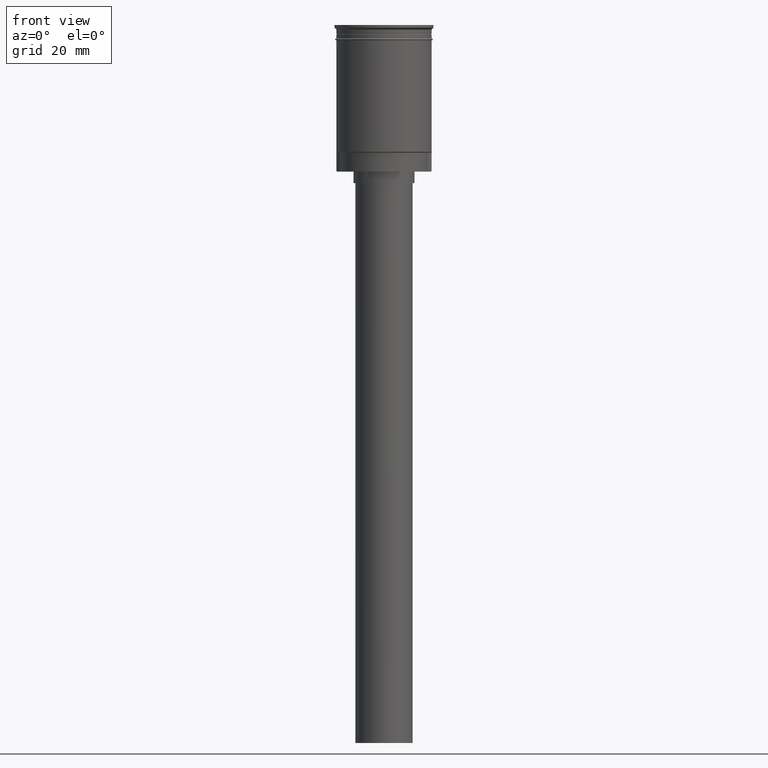
[diagram: clean part render]
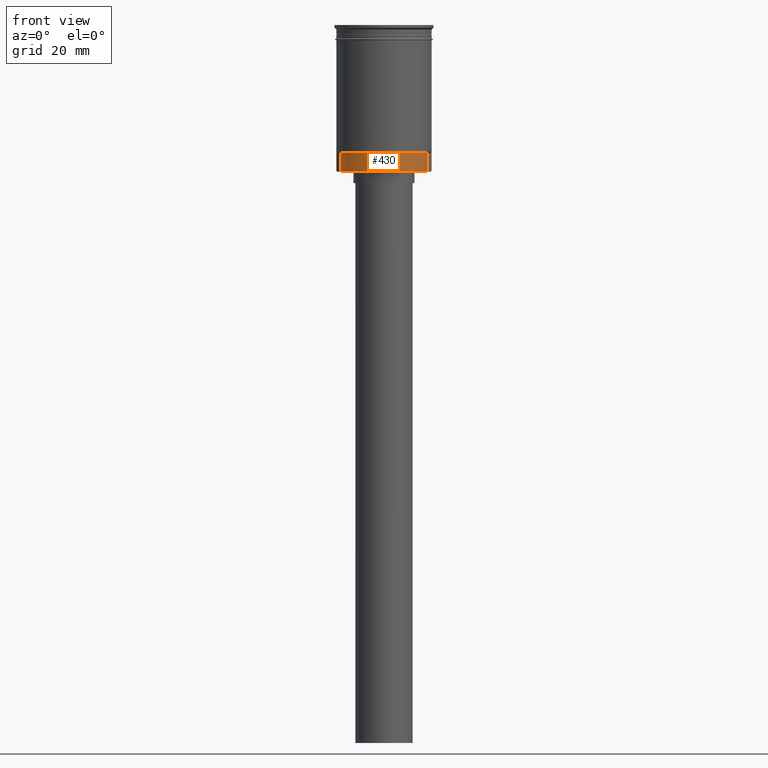
[diagram: same view with one face highlighted and labeled with its STEP entity id]
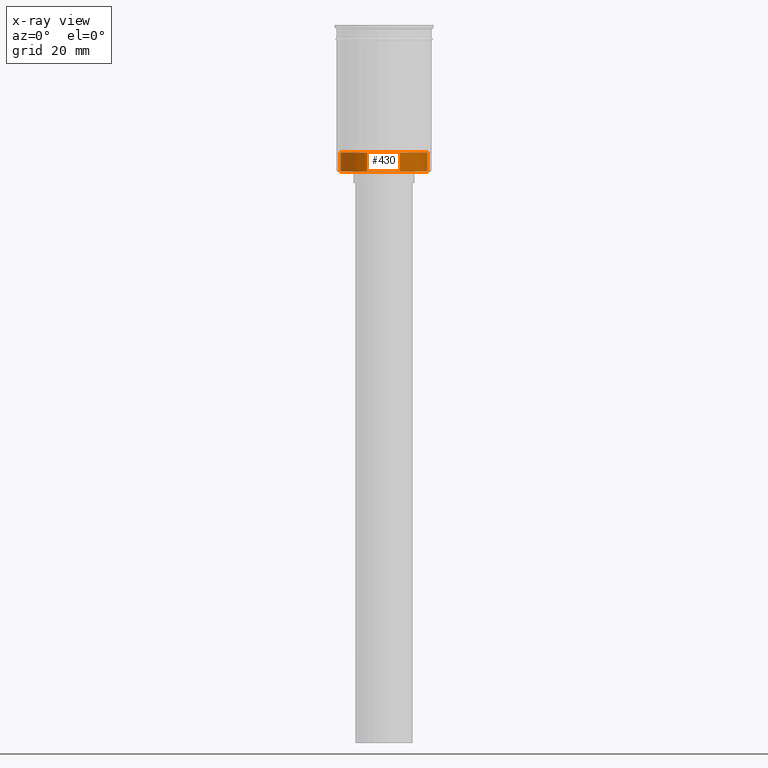
[diagram: x-ray of the same camera — body ghosted, the highlighted face saturated]
A machine part, front view. The second image highlights one B-rep face of the part: STEP entity #430.
The next image is the same camera in x-ray: the body ghosted, the highlighted face saturated — about 0% of this face is hidden behind the body in this view.
In plain terms, the highlighted cylindrical surface (partial cylindrical patch) has radius 11.55 mm, axis along (-0, -0, 1).
Its self-contained STEP definition (entity closure, byte-faithful):
#16 = CARTESIAN_POINT ( 'NONE',  ( 11.39766701030927543, -1.869675566002708900, -38.50000000000000000 ) ) ;
#24 = VERTEX_POINT ( 'NONE', #16 ) ;
#28 = CARTESIAN_POINT ( 'NONE',  ( -11.39766701030927543, -1.869675566002713563, -33.50000000000000000 ) ) ;
#37 = LINE ( 'NONE', #549, #789 ) ;
#46 = CARTESIAN_POINT ( 'NONE',  ( 11.39766701030927543, -1.869675566002708900, -33.50000000000000000 ) ) ;
#98 = DIRECTION ( 'NONE',  ( -1.000000000000000000, 0.000000000000000000, 0.000000000000000000 ) ) ;
#170 = DIRECTION ( 'NONE',  ( -0.000000000000000000, -0.000000000000000000, 1.000000000000000000 ) ) ;
#220 = DIRECTION ( 'NONE',  ( 0.000000000000000000, 0.000000000000000000, -1.000000000000000000 ) ) ;
#235 = EDGE_CURVE ( 'NONE', #24, #779, #858, .T. ) ;
#267 = CARTESIAN_POINT ( 'NONE',  ( -11.39766701030927543, -1.869675566002713563, -38.50000000000000000 ) ) ;
#268 = DIRECTION ( 'NONE',  ( 1.000000000000000000, 0.000000000000000000, 0.000000000000000000 ) ) ;
#355 = CARTESIAN_POINT ( 'NONE',  ( -11.39766701030927543, -1.869675566002713563, -38.50000000000000000 ) ) ;
#357 = CARTESIAN_POINT ( 'NONE',  ( 0.000000000000000000, 0.000000000000000000, -38.50000000000000000 ) ) ;
#430 = ADVANCED_FACE ( 'NONE', ( #1120 ), #892, .T. ) ;
#549 = CARTESIAN_POINT ( 'NONE',  ( 11.39766701030927543, -1.869675566002708900, -38.50000000000000000 ) ) ;
#583 = VERTEX_POINT ( 'NONE', #46 ) ;
#598 = CARTESIAN_POINT ( 'NONE',  ( 0.000000000000000000, 0.000000000000000000, -33.50000000000000000 ) ) ;
#638 = LINE ( 'NONE', #267, #1039 ) ;
#702 = ORIENTED_EDGE ( 'NONE', *, *, #235, .F. ) ;
#713 = DIRECTION ( 'NONE',  ( -1.000000000000000000, 0.000000000000000000, 0.000000000000000000 ) ) ;
#752 = DIRECTION ( 'NONE',  ( -0.000000000000000000, -0.000000000000000000, 1.000000000000000000 ) ) ;
#754 = ORIENTED_EDGE ( 'NONE', *, *, #1600, .T. ) ;
#779 = VERTEX_POINT ( 'NONE', #355 ) ;
#789 = VECTOR ( 'NONE', #1024, 1000.000000000000000 ) ;
#838 = VERTEX_POINT ( 'NONE', #28 ) ;
#858 = CIRCLE ( 'NONE', #1399, 11.54999999999999716 ) ;
#892 = CYLINDRICAL_SURFACE ( 'NONE', #1566, 11.54999999999999716 ) ;
#928 = EDGE_CURVE ( 'NONE', #779, #838, #638, .T. ) ;
#980 = EDGE_LOOP ( 'NONE', ( #754, #1474, #702, #1158 ) ) ;
#1024 = DIRECTION ( 'NONE',  ( -0.000000000000000000, -0.000000000000000000, 1.000000000000000000 ) ) ;
#1039 = VECTOR ( 'NONE', #752, 1000.000000000000000 ) ;
#1049 = CIRCLE ( 'NONE', #1104, 11.54999999999999716 ) ;
#1104 = AXIS2_PLACEMENT_3D ( 'NONE', #598, #220, #713 ) ;
#1110 = EDGE_CURVE ( 'NONE', #24, #583, #37, .T. ) ;
#1120 = FACE_OUTER_BOUND ( 'NONE', #980, .T. ) ;
#1158 = ORIENTED_EDGE ( 'NONE', *, *, #1110, .T. ) ;
#1209 = DIRECTION ( 'NONE',  ( 0.000000000000000000, 0.000000000000000000, -1.000000000000000000 ) ) ;
#1250 = CARTESIAN_POINT ( 'NONE',  ( 0.000000000000000000, 0.000000000000000000, -38.50000000000000000 ) ) ;
#1399 = AXIS2_PLACEMENT_3D ( 'NONE', #357, #1209, #98 ) ;
#1474 = ORIENTED_EDGE ( 'NONE', *, *, #928, .F. ) ;
#1566 = AXIS2_PLACEMENT_3D ( 'NONE', #1250, #170, #268 ) ;
#1600 = EDGE_CURVE ( 'NONE', #583, #838, #1049, .T. ) ;